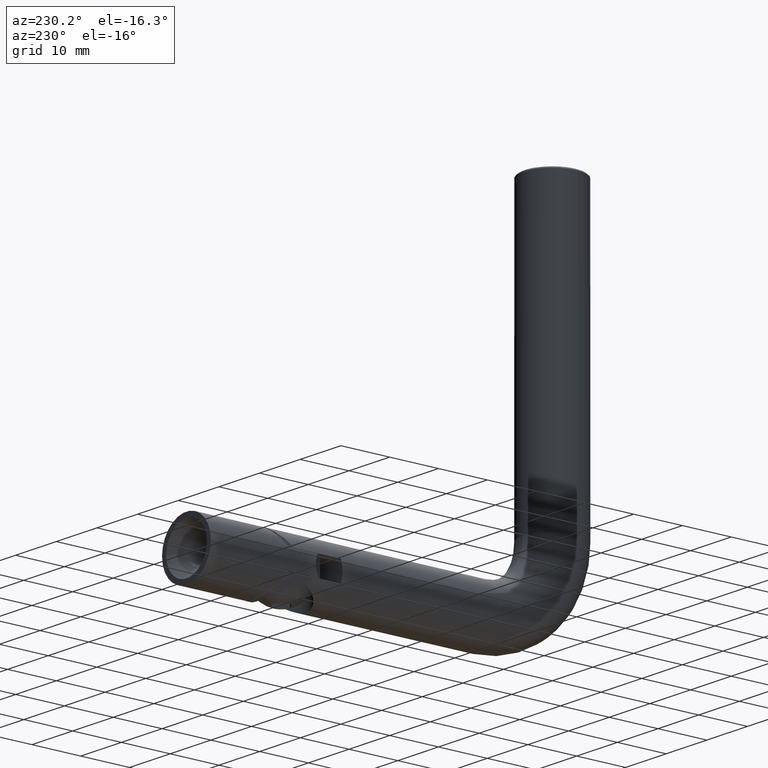
[diagram: clean part render]
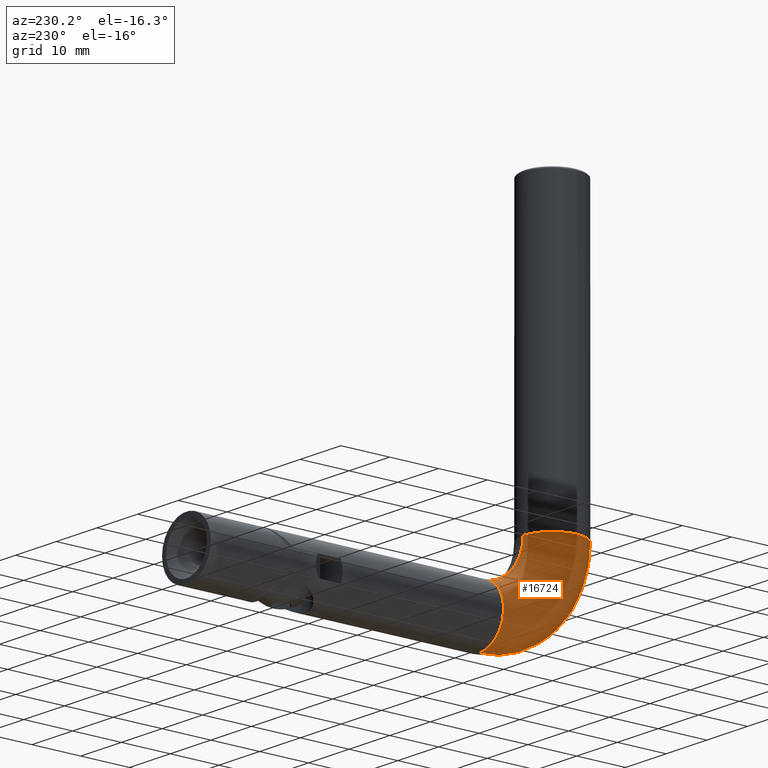
[diagram: same view with one face highlighted and labeled with its STEP entity id]
A machine part, auxiliary view. The second image highlights one B-rep face of the part: STEP entity #16724.
In plain terms, the highlighted toroidal blend (fillet) surface has major radius 15 mm and minor (blend) radius 6 mm.
Its self-contained STEP definition (entity closure, byte-faithful):
#436 = CARTESIAN_POINT ( 'NONE',  ( 0.000000000000000000, 14.99999999999999822, -68.99999999999998579 ) ) ;
#1249 = CARTESIAN_POINT ( 'NONE',  ( -6.000000000000000888, 7.347880794884120722E-16, -60.00000000000000000 ) ) ;
#1496 = DIRECTION ( 'NONE',  ( 0.000000000000000000, 0.000000000000000000, -1.000000000000000000 ) ) ;
#1518 = ORIENTED_EDGE ( 'NONE', *, *, #15084, .T. ) ;
#1722 = TOROIDAL_SURFACE ( 'NONE', #4084, 15.00000000000000000, 6.000000000000000888 ) ;
#1737 = DIRECTION ( 'NONE',  ( 1.000000000000000000, 0.000000000000000000, -0.000000000000000000 ) ) ;
#2368 = FACE_OUTER_BOUND ( 'NONE', #11234, .T. ) ;
#2498 = ORIENTED_EDGE ( 'NONE', *, *, #9371, .F. ) ;
#2629 = CARTESIAN_POINT ( 'NONE',  ( 0.000000000000000000, 15.00000000000000000, -75.00000000000000000 ) ) ;
#3384 = ORIENTED_EDGE ( 'NONE', *, *, #7168, .T. ) ;
#3597 = CARTESIAN_POINT ( 'NONE',  ( 0.000000000000000000, 0.000000000000000000, -60.00000000000000000 ) ) ;
#3969 = CARTESIAN_POINT ( 'NONE',  ( 0.000000000000000000, -6.000000000000001776, -60.00000000000000000 ) ) ;
#4084 = AXIS2_PLACEMENT_3D ( 'NONE', #11306, #16730, #14087 ) ;
#4292 = DIRECTION ( 'NONE',  ( 1.000000000000000000, 0.000000000000000000, 0.000000000000000000 ) ) ;
#4565 = AXIS2_PLACEMENT_3D ( 'NONE', #5578, #10993, #4292 ) ;
#4928 = ORIENTED_EDGE ( 'NONE', *, *, #5269, .F. ) ;
#4971 = EDGE_CURVE ( 'NONE', #12668, #16050, #11732, .T. ) ;
#5269 = EDGE_CURVE ( 'NONE', #15259, #12668, #15528, .T. ) ;
#5578 = CARTESIAN_POINT ( 'NONE',  ( 0.000000000000000000, 0.000000000000000000, -60.00000000000000000 ) ) ;
#6042 = CARTESIAN_POINT ( 'NONE',  ( -7.347880794884119736E-16, 6.000000000000000888, -60.00000000000000000 ) ) ;
#6249 = DIRECTION ( 'NONE',  ( 0.000000000000000000, 0.000000000000000000, 1.000000000000000000 ) ) ;
#7168 = EDGE_CURVE ( 'NONE', #17156, #8728, #13696, .T. ) ;
#8119 = AXIS2_PLACEMENT_3D ( 'NONE', #16459, #1737, #1496 ) ;
#8183 = DIRECTION ( 'NONE',  ( 0.000000000000000000, 0.000000000000000000, -1.000000000000000000 ) ) ;
#8486 = AXIS2_PLACEMENT_3D ( 'NONE', #3597, #6249, #11617 ) ;
#8728 = VERTEX_POINT ( 'NONE', #12544 ) ;
#9371 = EDGE_CURVE ( 'NONE', #16050, #8728, #13256, .T. ) ;
#9976 = CIRCLE ( 'NONE', #8119, 8.999999999999994671 ) ;
#10900 = AXIS2_PLACEMENT_3D ( 'NONE', #13616, #16174, #8183 ) ;
#10993 = DIRECTION ( 'NONE',  ( 0.000000000000000000, 0.000000000000000000, 1.000000000000000000 ) ) ;
#11234 = EDGE_LOOP ( 'NONE', ( #2498, #17470, #4928, #1518, #3384 ) ) ;
#11306 = CARTESIAN_POINT ( 'NONE',  ( 0.000000000000000000, 15.00000000000000000, -60.00000000000000000 ) ) ;
#11617 = DIRECTION ( 'NONE',  ( 1.000000000000000000, 0.000000000000000000, 0.000000000000000000 ) ) ;
#11732 = CIRCLE ( 'NONE', #4565, 6.000000000000000888 ) ;
#11944 = AXIS2_PLACEMENT_3D ( 'NONE', #2629, #16129, #12009 ) ;
#12009 = DIRECTION ( 'NONE',  ( 1.000000000000000000, 0.000000000000000000, 0.000000000000000000 ) ) ;
#12544 = CARTESIAN_POINT ( 'NONE',  ( 7.347880794884113820E-16, 15.00000000000000178, -81.00000000000000000 ) ) ;
#12668 = VERTEX_POINT ( 'NONE', #1249 ) ;
#13256 = CIRCLE ( 'NONE', #10900, 21.00000000000000355 ) ;
#13616 = CARTESIAN_POINT ( 'NONE',  ( 0.000000000000000000, 15.00000000000000000, -60.00000000000000000 ) ) ;
#13696 = CIRCLE ( 'NONE', #11944, 6.000000000000000888 ) ;
#14087 = DIRECTION ( 'NONE',  ( 0.000000000000000000, 0.000000000000000000, -1.000000000000000000 ) ) ;
#15084 = EDGE_CURVE ( 'NONE', #15259, #17156, #9976, .T. ) ;
#15259 = VERTEX_POINT ( 'NONE', #6042 ) ;
#15528 = CIRCLE ( 'NONE', #8486, 6.000000000000000888 ) ;
#16050 = VERTEX_POINT ( 'NONE', #3969 ) ;
#16129 = DIRECTION ( 'NONE',  ( 0.000000000000000000, -1.000000000000000000, -1.608122649676636601E-16 ) ) ;
#16174 = DIRECTION ( 'NONE',  ( 1.000000000000000000, 0.000000000000000000, -0.000000000000000000 ) ) ;
#16459 = CARTESIAN_POINT ( 'NONE',  ( -7.347880794884120722E-16, 15.00000000000000000, -60.00000000000000000 ) ) ;
#16724 = ADVANCED_FACE ( 'NONE', ( #2368 ), #1722, .T. ) ;
#16730 = DIRECTION ( 'NONE',  ( 1.000000000000000000, 0.000000000000000000, -0.000000000000000000 ) ) ;
#17156 = VERTEX_POINT ( 'NONE', #436 ) ;
#17470 = ORIENTED_EDGE ( 'NONE', *, *, #4971, .F. ) ;